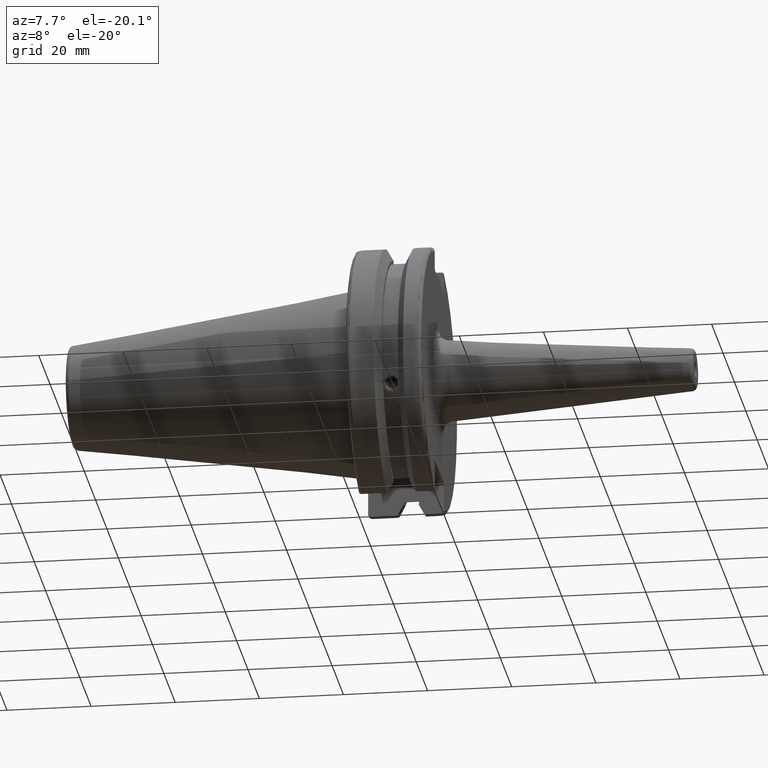
[diagram: clean part render]
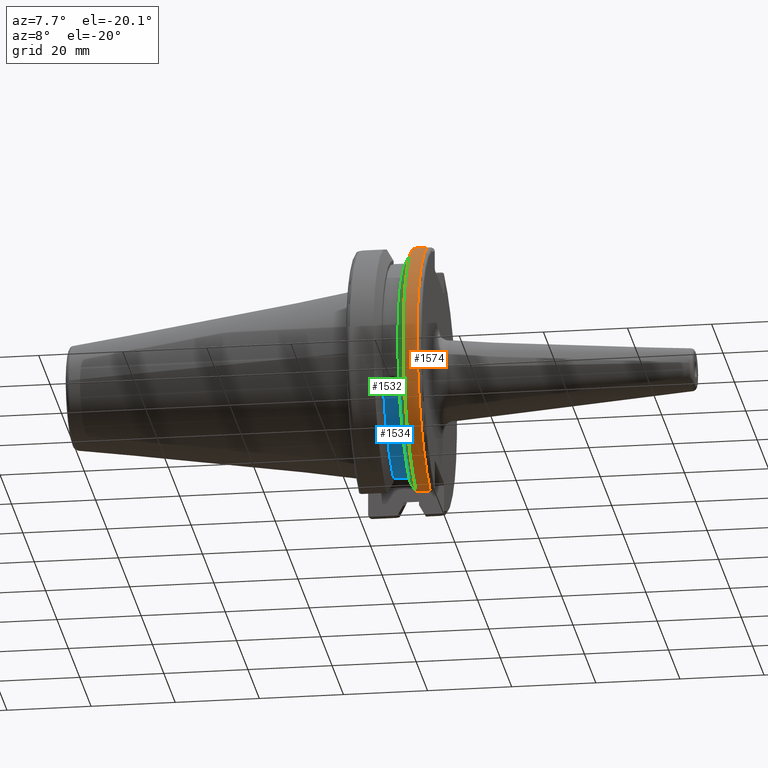
[diagram: same view with three faces highlighted in distinct colors, each labeled with its STEP entity id]
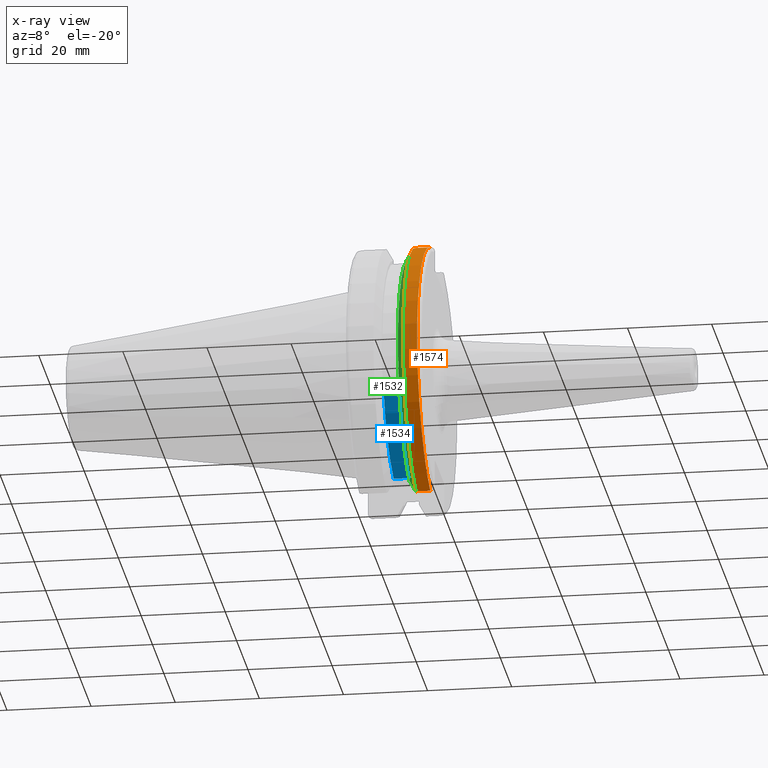
[diagram: x-ray of the same camera — body ghosted, the three highlighted faces saturated]
A machine part, auxiliary view with three faces highlighted in distinct colors.
The next image is the same camera in x-ray (body ghosted, the three faces saturated) — at least one of them is partly hidden behind the body in this view.
Their STEP definitions:

[orange] entity #1574 — the highlighted cylindrical surface (partial cylindrical patch) has radius 31.75 mm, axis along (1, 0, 0).
#182=LINE('',#2992,#278);
#183=LINE('',#2994,#279);
#278=VECTOR('',#2172,10.);
#279=VECTOR('',#2175,10.);
#308=CYLINDRICAL_SURFACE('',#1762,31.75);
#429=FACE_OUTER_BOUND('',#528,.T.);
#528=EDGE_LOOP('',(#1394,#1395,#1396,#1397));
#583=CIRCLE('',#1680,31.75);
#602=CIRCLE('',#1730,31.75);
#688=VERTEX_POINT('',#2543);
#689=VERTEX_POINT('',#2547);
#739=VERTEX_POINT('',#2800);
#740=VERTEX_POINT('',#2809);
#863=EDGE_CURVE('',#689,#688,#583,.T.);
#936=EDGE_CURVE('',#739,#740,#602,.T.);
#998=EDGE_CURVE('',#740,#688,#182,.T.);
#999=EDGE_CURVE('',#689,#739,#183,.T.);
#1394=ORIENTED_EDGE('',*,*,#936,.F.);
#1395=ORIENTED_EDGE('',*,*,#999,.F.);
#1396=ORIENTED_EDGE('',*,*,#863,.T.);
#1397=ORIENTED_EDGE('',*,*,#998,.F.);
#1574=ADVANCED_FACE('',(#429),#308,.T.);
#1680=AXIS2_PLACEMENT_3D('',#2548,#1950,#1951);
#1730=AXIS2_PLACEMENT_3D('',#2810,#2074,#2075);
#1762=AXIS2_PLACEMENT_3D('',#2993,#2173,#2174);
#1950=DIRECTION('center_axis',(1.,0.,0.));
#1951=DIRECTION('ref_axis',(0.,0.,-1.));
#2074=DIRECTION('center_axis',(1.,0.,0.));
#2075=DIRECTION('ref_axis',(0.,-1.,1.60812264967664E-16));
#2172=DIRECTION('',(-1.,0.,0.));
#2173=DIRECTION('center_axis',(1.,0.,0.));
#2174=DIRECTION('ref_axis',(0.,-1.,1.22464679914735E-16));
#2175=DIRECTION('',(1.,0.,0.));
#2543=CARTESIAN_POINT('',(14.7021667690756,-8.67204822802685,-30.5427254764662));
#2547=CARTESIAN_POINT('',(14.7021667690756,-8.67204822802685,30.5427254764662));
#2548=CARTESIAN_POINT('Origin',(14.7021667690756,0.,0.));
#2800=CARTESIAN_POINT('',(18.05,-8.67204822802685,30.5427254764662));
#2809=CARTESIAN_POINT('',(18.05,-8.67204822802685,-30.5427254764662));
#2810=CARTESIAN_POINT('Origin',(18.05,0.,0.));
#2992=CARTESIAN_POINT('',(16.8760833845378,-8.67204822802685,-30.5427254764662));
#2993=CARTESIAN_POINT('Origin',(16.8760833845378,0.,0.));
#2994=CARTESIAN_POINT('',(16.8760833845378,-8.67204822802685,30.5427254764662));

[blue] entity #1534 — the highlighted cylindrical surface (partial cylindrical patch) has radius 28.15 mm, axis along (1, 0, 0).
#58=B_SPLINE_CURVE_WITH_KNOTS('',3,(#2492,#2493,#2494,#2495,#2496,#2497,
#2498,#2499,#2500,#2501,#2502,#2503,#2504,#2505,#2506),.UNSPECIFIED.,.F.,
 .F.,(4,2,2,3,2,2,4),(-0.231446873660085,-0.158271583089134,-0.079135791544567,
0.,0.0791357915445672,0.158271583089134,0.231446873660466),
 .UNSPECIFIED.);
#125=LINE('',#2565,#221);
#221=VECTOR('',#1963,10.);
#298=CYLINDRICAL_SURFACE('',#1684,28.15);
#389=FACE_OUTER_BOUND('',#483,.T.);
#483=EDGE_LOOP('',(#1158,#1159,#1160,#1161));
#585=CIRCLE('',#1683,28.15);
#586=CIRCLE('',#1685,28.15);
#678=VERTEX_POINT('',#2489);
#679=VERTEX_POINT('',#2491);
#692=VERTEX_POINT('',#2559);
#693=VERTEX_POINT('',#2563);
#849=EDGE_CURVE('',#679,#678,#58,.T.);
#867=EDGE_CURVE('',#679,#692,#585,.T.);
#869=EDGE_CURVE('',#678,#693,#586,.T.);
#870=EDGE_CURVE('',#693,#692,#125,.T.);
#1158=ORIENTED_EDGE('',*,*,#849,.T.);
#1159=ORIENTED_EDGE('',*,*,#869,.T.);
#1160=ORIENTED_EDGE('',*,*,#870,.T.);
#1161=ORIENTED_EDGE('',*,*,#867,.F.);
#1534=ADVANCED_FACE('',(#389),#298,.T.);
#1683=AXIS2_PLACEMENT_3D('',#2560,#1956,#1957);
#1684=AXIS2_PLACEMENT_3D('',#2562,#1959,#1960);
#1685=AXIS2_PLACEMENT_3D('',#2564,#1961,#1962);
#1956=DIRECTION('center_axis',(1.,0.,0.));
#1957=DIRECTION('ref_axis',(0.,0.,-1.));
#1959=DIRECTION('center_axis',(1.,0.,0.));
#1960=DIRECTION('ref_axis',(0.,1.,0.));
#1961=DIRECTION('center_axis',(1.,0.,0.));
#1962=DIRECTION('ref_axis',(0.,0.,-1.));
#1963=DIRECTION('',(1.,0.,0.));
#2489=CARTESIAN_POINT('',(9.261,-26.1451788594704,-10.4332220529567));
#2491=CARTESIAN_POINT('',(13.091,-26.1451788594704,-10.4332220529567));
#2492=CARTESIAN_POINT('Ctrl Pts',(13.091,-26.1451788594704,-10.4332220529567));
#2493=CARTESIAN_POINT('Ctrl Pts',(12.9847694290343,-26.0576536126147,-10.6525563316815));
#2494=CARTESIAN_POINT('Ctrl Pts',(12.833279862294,-25.9751489313128,-10.8509873904882));
#2495=CARTESIAN_POINT('Ctrl Pts',(12.4745293734259,-25.8346412777187,-11.1816210830117));
#2496=CARTESIAN_POINT('Ctrl Pts',(12.2384549887012,-25.7695111693635,-11.3298867884858));
#2497=CARTESIAN_POINT('Ctrl Pts',(11.7210874573612,-25.6822868299377,-11.5262389251846));
#2498=CARTESIAN_POINT('Ctrl Pts',(11.4397859718152,-25.6603958057616,-11.5743935949859));
#2499=CARTESIAN_POINT('Ctrl Pts',(11.176,-25.6603958057616,-11.5743935949859));
#2500=CARTESIAN_POINT('Ctrl Pts',(10.9122140281848,-25.6603958057616,-11.5743935949859));
#2501=CARTESIAN_POINT('Ctrl Pts',(10.6309125426388,-25.6822868299377,-11.5262389251846));
#2502=CARTESIAN_POINT('Ctrl Pts',(10.1135450112988,-25.7695111693635,-11.3298867884858));
#2503=CARTESIAN_POINT('Ctrl Pts',(9.8774706265741,-25.8346412777187,-11.1816210830117));
#2504=CARTESIAN_POINT('Ctrl Pts',(9.5187201377051,-25.9751489313131,-10.8509873904873));
#2505=CARTESIAN_POINT('Ctrl Pts',(9.36723057097183,-26.0576536126096,-10.6525563316942));
#2506=CARTESIAN_POINT('Ctrl Pts',(9.261,-26.1451788594704,-10.4332220529567));
#2559=CARTESIAN_POINT('',(13.091,-8.19,-26.932255754021));
#2560=CARTESIAN_POINT('Origin',(13.091,0.,0.));
#2562=CARTESIAN_POINT('Origin',(11.176,0.,0.));
#2563=CARTESIAN_POINT('',(9.261,-8.19,-26.932255754021));
#2564=CARTESIAN_POINT('Origin',(9.261,0.,0.));
#2565=CARTESIAN_POINT('',(11.176,-8.19,-26.932255754021));

[green] entity #1532 — the highlighted conical surface has half-angle 60 deg.
#15=(
BOUNDED_CURVE()
B_SPLINE_CURVE(2,(#2540,#2541,#2542),.UNSPECIFIED.,.F.,.F.)
B_SPLINE_CURVE_WITH_KNOTS((3,3),(0.,0.276549142796805),.UNSPECIFIED.)
CURVE()
GEOMETRIC_REPRESENTATION_ITEM()
RATIONAL_B_SPLINE_CURVE((1.,1.00095203904186,1.00031614445102))
REPRESENTATION_ITEM('')
);
#16=(
BOUNDED_CURVE()
B_SPLINE_CURVE(2,(#2544,#2545,#2546),.UNSPECIFIED.,.F.,.F.)
B_SPLINE_CURVE_WITH_KNOTS((3,3),(0.,0.0639048713676002),.UNSPECIFIED.)
CURVE()
GEOMETRIC_REPRESENTATION_ITEM()
RATIONAL_B_SPLINE_CURVE((1.,1.0002844421828,1.00047644010568))
REPRESENTATION_ITEM('')
);
#17=(
BOUNDED_CURVE()
B_SPLINE_CURVE(2,(#2550,#2551,#2552),.UNSPECIFIED.,.F.,.F.)
B_SPLINE_CURVE_WITH_KNOTS((3,3),(0.329353533631192,0.393258405001023),
 .UNSPECIFIED.)
CURVE()
GEOMETRIC_REPRESENTATION_ITEM()
RATIONAL_B_SPLINE_CURVE((1.00047644010581,1.00028444218288,1.))
REPRESENTATION_ITEM('')
);
#18=(
BOUNDED_CURVE()
B_SPLINE_CURVE(2,(#2554,#2555,#2556),.UNSPECIFIED.,.F.,.F.)
B_SPLINE_CURVE_WITH_KNOTS((3,3),(0.0550586467390284,0.331607789535849),
 .UNSPECIFIED.)
CURVE()
GEOMETRIC_REPRESENTATION_ITEM()
RATIONAL_B_SPLINE_CURVE((1.00031614445116,1.00095203904229,1.))
REPRESENTATION_ITEM('')
);
#55=B_SPLINE_CURVE_WITH_KNOTS('',3,(#2447,#2448,#2449,#2450,#2451,#2452,
#2453,#2454),.UNSPECIFIED.,.F.,.F.,(4,2,2,4),(0.451995700189026,0.46454782854766,
0.504528771685166,0.544509714822671),.UNSPECIFIED.);
#59=B_SPLINE_CURVE_WITH_KNOTS('',3,(#2509,#2510,#2511,#2512,#2513,#2514,
#2515,#2516),.UNSPECIFIED.,.F.,.F.,(4,2,2,4),(0.544509714822671,0.584490657960176,
0.624471601097681,0.637023729456314),.UNSPECIFIED.);
#85=CONICAL_SURFACE('',#1678,30.3546886482472,1.0471975511966);
#387=FACE_OUTER_BOUND('',#481,.T.);
#481=EDGE_LOOP('',(#1145,#1146,#1147,#1148,#1149,#1150,#1151,#1152,#1153));
#582=CIRCLE('',#1679,28.9593772964944);
#583=CIRCLE('',#1680,31.75);
#584=CIRCLE('',#1681,28.9593772964944);
#672=VERTEX_POINT('',#2444);
#673=VERTEX_POINT('',#2446);
#680=VERTEX_POINT('',#2507);
#686=VERTEX_POINT('',#2537);
#687=VERTEX_POINT('',#2539);
#688=VERTEX_POINT('',#2543);
#689=VERTEX_POINT('',#2547);
#690=VERTEX_POINT('',#2549);
#691=VERTEX_POINT('',#2553);
#843=EDGE_CURVE('',#673,#672,#55,.T.);
#851=EDGE_CURVE('',#672,#680,#59,.T.);
#860=EDGE_CURVE('',#680,#686,#582,.T.);
#861=EDGE_CURVE('',#686,#687,#15,.T.);
#862=EDGE_CURVE('',#688,#687,#16,.T.);
#863=EDGE_CURVE('',#689,#688,#583,.T.);
#864=EDGE_CURVE('',#690,#689,#17,.T.);
#865=EDGE_CURVE('',#690,#691,#18,.T.);
#866=EDGE_CURVE('',#691,#673,#584,.T.);
#1145=ORIENTED_EDGE('',*,*,#843,.T.);
#1146=ORIENTED_EDGE('',*,*,#851,.T.);
#1147=ORIENTED_EDGE('',*,*,#860,.T.);
#1148=ORIENTED_EDGE('',*,*,#861,.T.);
#1149=ORIENTED_EDGE('',*,*,#862,.F.);
#1150=ORIENTED_EDGE('',*,*,#863,.F.);
#1151=ORIENTED_EDGE('',*,*,#864,.F.);
#1152=ORIENTED_EDGE('',*,*,#865,.T.);
#1153=ORIENTED_EDGE('',*,*,#866,.T.);
#1532=ADVANCED_FACE('',(#387),#85,.T.);
#1678=AXIS2_PLACEMENT_3D('',#2536,#1946,#1947);
#1679=AXIS2_PLACEMENT_3D('',#2538,#1948,#1949);
#1680=AXIS2_PLACEMENT_3D('',#2548,#1950,#1951);
#1681=AXIS2_PLACEMENT_3D('',#2557,#1952,#1953);
#1946=DIRECTION('center_axis',(1.,0.,0.));
#1947=DIRECTION('ref_axis',(0.,-1.,-1.22464679914735E-16));
#1948=DIRECTION('center_axis',(1.,0.,0.));
#1949=DIRECTION('ref_axis',(0.,0.,-1.));
#1950=DIRECTION('center_axis',(1.,0.,0.));
#1951=DIRECTION('ref_axis',(0.,0.,-1.));
#1952=DIRECTION('center_axis',(1.,0.,0.));
#1953=DIRECTION('ref_axis',(0.,0.,-1.));
#2444=CARTESIAN_POINT('',(13.276,-27.51401829017,-10.0142836826777));
#2446=CARTESIAN_POINT('',(13.091,-27.4956274489925,-9.09043478536249));
#2447=CARTESIAN_POINT('Ctrl Pts',(13.091,-27.4956274489925,-9.09043478536248));
#2448=CARTESIAN_POINT('Ctrl Pts',(13.1051204071996,-27.5087667900418,-9.12860597076219));
#2449=CARTESIAN_POINT('Ctrl Pts',(13.1185929817857,-27.5206055003512,-9.16696618806878));
#2450=CARTESIAN_POINT('Ctrl Pts',(13.171981441159,-27.5642934663232,-9.32791534028655));
#2451=CARTESIAN_POINT('Ctrl Pts',(13.2101197084175,-27.5867382255984,-9.46717946402648));
#2452=CARTESIAN_POINT('Ctrl Pts',(13.2623106446058,-27.5847569104122,-9.74771639360671));
#2453=CARTESIAN_POINT('Ctrl Pts',(13.276,-27.559599249844,-9.8890510252165));
#2454=CARTESIAN_POINT('Ctrl Pts',(13.276,-27.51401829017,-10.0142836826777));
#2507=CARTESIAN_POINT('',(13.091,-26.9060914640649,-10.710171591907));
#2509=CARTESIAN_POINT('Ctrl Pts',(13.276,-27.51401829017,-10.0142836826777));
#2510=CARTESIAN_POINT('Ctrl Pts',(13.276,-27.4684373304961,-10.139516340139));
#2511=CARTESIAN_POINT('Ctrl Pts',(13.2623106446058,-27.3968610665578,-10.2639559818059));
#2512=CARTESIAN_POINT('Ctrl Pts',(13.2101197084175,-27.2180531796526,-10.4801333026531));
#2513=CARTESIAN_POINT('Ctrl Pts',(13.171981441159,-27.1113422433189,-10.5723885976054));
#2514=CARTESIAN_POINT('Ctrl Pts',(13.1185929817857,-26.9744191989197,-10.6676007180673));
#2515=CARTESIAN_POINT('Ctrl Pts',(13.1051204071996,-26.9406927482839,-10.6893765730703));
#2516=CARTESIAN_POINT('Ctrl Pts',(13.091,-26.9060914640649,-10.7101715919071));
#2536=CARTESIAN_POINT('Origin',(13.8965833845378,0.,0.));
#2537=CARTESIAN_POINT('',(13.091,-8.19,-27.7771386827498));
#2538=CARTESIAN_POINT('Origin',(13.091,0.,0.));
#2539=CARTESIAN_POINT('',(14.4234146964874,-8.19,-30.1755016258903));
#2540=CARTESIAN_POINT('Ctrl Pts',(13.091,-8.19,-27.7771386827498));
#2541=CARTESIAN_POINT('Ctrl Pts',(13.7296364384735,-8.19,-28.9303689539659));
#2542=CARTESIAN_POINT('Ctrl Pts',(14.4234146964874,-8.19,-30.1755016258903));
#2543=CARTESIAN_POINT('',(14.7021667690756,-8.67204822802685,-30.5427254764662));
#2544=CARTESIAN_POINT('Ctrl Pts',(14.7021667690756,-8.67204822802686,-30.5427254764662));
#2545=CARTESIAN_POINT('Ctrl Pts',(14.5611085187837,-8.42917748262647,-30.357706789263));
#2546=CARTESIAN_POINT('Ctrl Pts',(14.4234146964874,-8.19,-30.1755016258903));
#2547=CARTESIAN_POINT('',(14.7021667690756,-8.67204822802685,30.5427254764662));
#2548=CARTESIAN_POINT('Origin',(14.7021667690756,0.,0.));
#2549=CARTESIAN_POINT('',(14.4234146964874,-8.19,30.1755016258903));
#2550=CARTESIAN_POINT('Ctrl Pts',(14.4234146964874,-8.19,30.1755016258903));
#2551=CARTESIAN_POINT('Ctrl Pts',(14.5611085187884,-8.42917748263466,30.3577067892692));
#2552=CARTESIAN_POINT('Ctrl Pts',(14.7021667690756,-8.67204822802685,30.5427254764662));
#2553=CARTESIAN_POINT('',(13.091,-8.19,27.7771386827498));
#2554=CARTESIAN_POINT('Ctrl Pts',(14.4234146964874,-8.19,30.1755016258903));
#2555=CARTESIAN_POINT('Ctrl Pts',(13.7296364384736,-8.19,28.9303689539661));
#2556=CARTESIAN_POINT('Ctrl Pts',(13.091,-8.19,27.7771386827498));
#2557=CARTESIAN_POINT('Origin',(13.091,0.,0.));